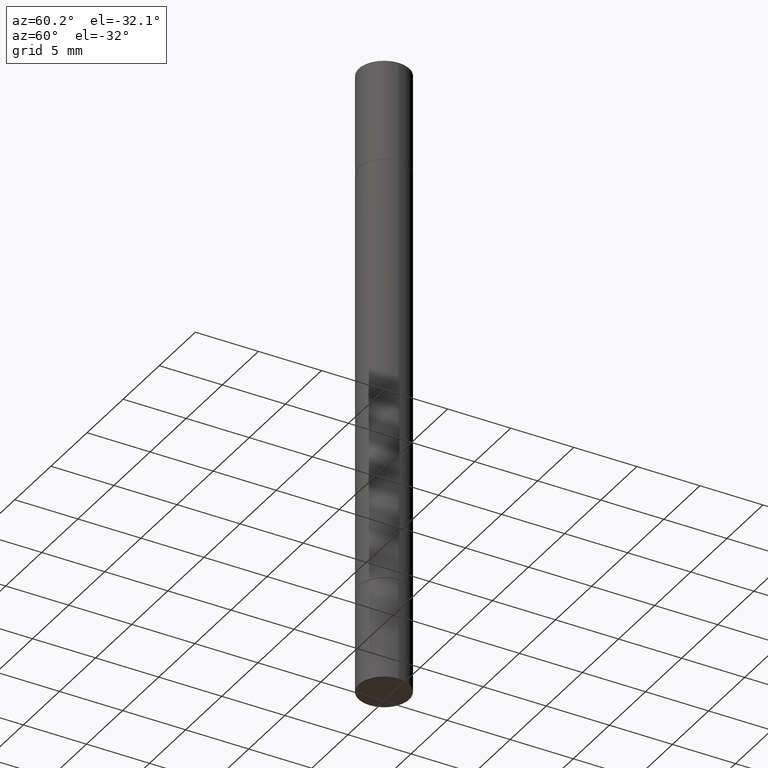
[diagram: clean part render]
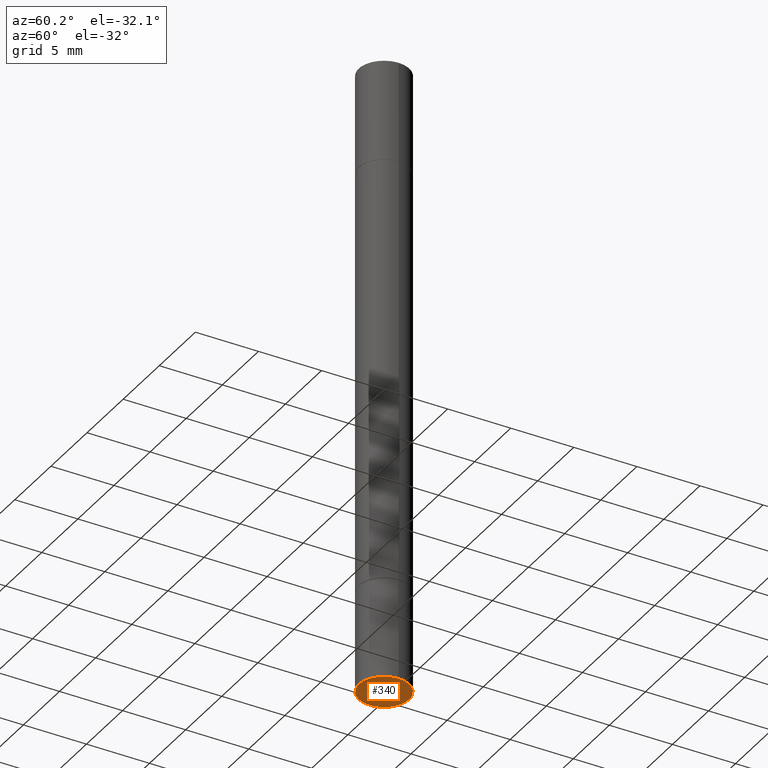
[diagram: same view with one face highlighted and labeled with its STEP entity id]
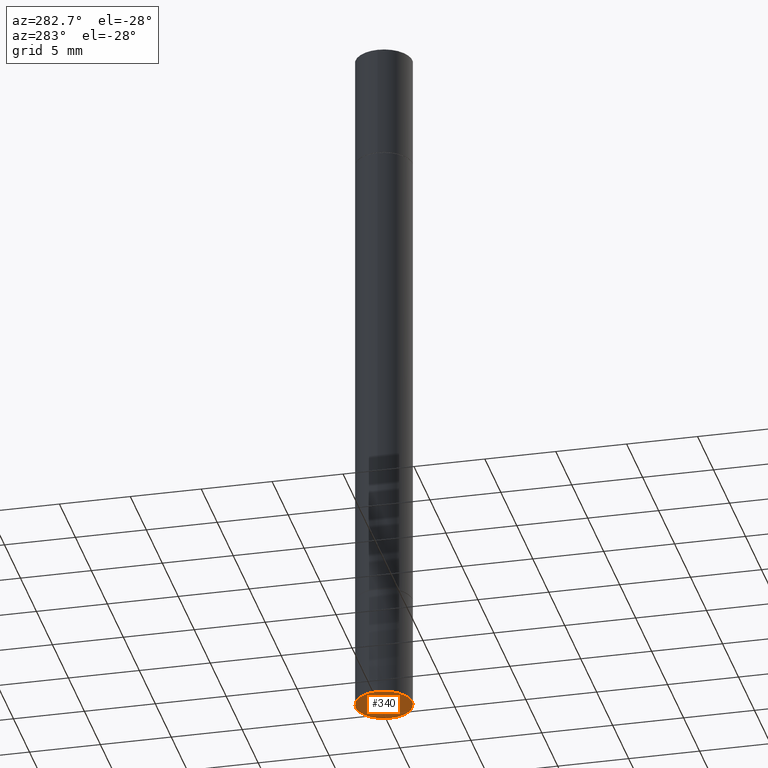
[diagram: same view with one face highlighted and labeled with its STEP entity id]
A machine part, auxiliary view. The second image highlights one B-rep face of the part: STEP entity #340.
A second angle (auxiliary view) of the same face is appended — the face is thin or edge-on in the first view.
In plain terms, the highlighted planar face has unit normal (0, -0, -1).
Its self-contained STEP definition (entity closure, byte-faithful):
#35 = DIRECTION ( 'NONE',  ( -2.445468806185136597E-29, 3.491481338843145583E-15, 1.000000000000000000 ) ) ;
#86 = ORIENTED_EDGE ( 'NONE', *, *, #156, .F. ) ;
#107 = VERTEX_POINT ( 'NONE', #665 ) ;
#144 = EDGE_LOOP ( 'NONE', ( #378, #86 ) ) ;
#156 = EDGE_CURVE ( 'NONE', #437, #107, #554, .T. ) ;
#214 = PLANE ( 'NONE',  #473 ) ;
#321 = CARTESIAN_POINT ( 'NONE',  ( 5.499083108678415648E-16, 0.07874999999999311717, -1.968500000000000361 ) ) ;
#331 = CARTESIAN_POINT ( 'NONE',  ( -0.07875000000000000056, -5.763520300233858771E-15, -1.968500000000000139 ) ) ;
#340 = ADVANCED_FACE ( 'NONE', ( #373 ), #214, .T. ) ;
#373 = FACE_OUTER_BOUND ( 'NONE', #144, .T. ) ;
#378 = ORIENTED_EDGE ( 'NONE', *, *, #628, .F. ) ;
#380 = CIRCLE ( 'NONE', #475, 0.07875000000000000056 ) ;
#416 = DIRECTION ( 'NONE',  ( -2.445468806185136597E-29, 3.491481338843145583E-15, 1.000000000000000000 ) ) ;
#424 = DIRECTION ( 'NONE',  ( 2.438088387897960049E-29, -3.491481338843145188E-15, -1.000000000000000000 ) ) ;
#437 = VERTEX_POINT ( 'NONE', #331 ) ;
#464 = DIRECTION ( 'NONE',  ( 1.000000000000000000, -6.982962677686261977E-15, 0.000000000000000000 ) ) ;
#473 = AXIS2_PLACEMENT_3D ( 'NONE', #321, #424, #634 ) ;
#475 = AXIS2_PLACEMENT_3D ( 'NONE', #553, #416, #464 ) ;
#529 = DIRECTION ( 'NONE',  ( 1.000000000000000000, -6.982962677686261977E-15, 0.000000000000000000 ) ) ;
#553 = CARTESIAN_POINT ( 'NONE',  ( 4.813905344975441835E-29, -6.872981015512731707E-15, -1.968500000000000139 ) ) ;
#554 = CIRCLE ( 'NONE', #566, 0.07875000000000000056 ) ;
#561 = CARTESIAN_POINT ( 'NONE',  ( 4.813905344975441835E-29, -6.872981015512731707E-15, -1.968500000000000139 ) ) ;
#566 = AXIS2_PLACEMENT_3D ( 'NONE', #561, #35, #529 ) ;
#628 = EDGE_CURVE ( 'NONE', #107, #437, #380, .T. ) ;
#634 = DIRECTION ( 'NONE',  ( -1.000000000000000000, 6.982962677686265922E-15, -4.876176775795935793E-29 ) ) ;
#665 = CARTESIAN_POINT ( 'NONE',  ( 0.07875000000000000056, -7.422889326380525053E-15, -1.968500000000000139 ) ) ;